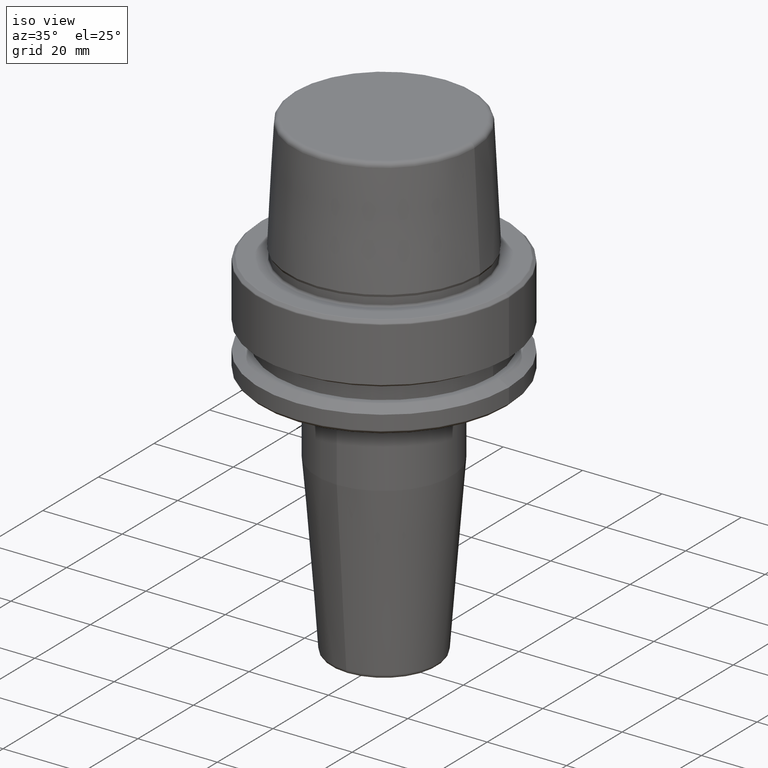
[diagram: clean part render]
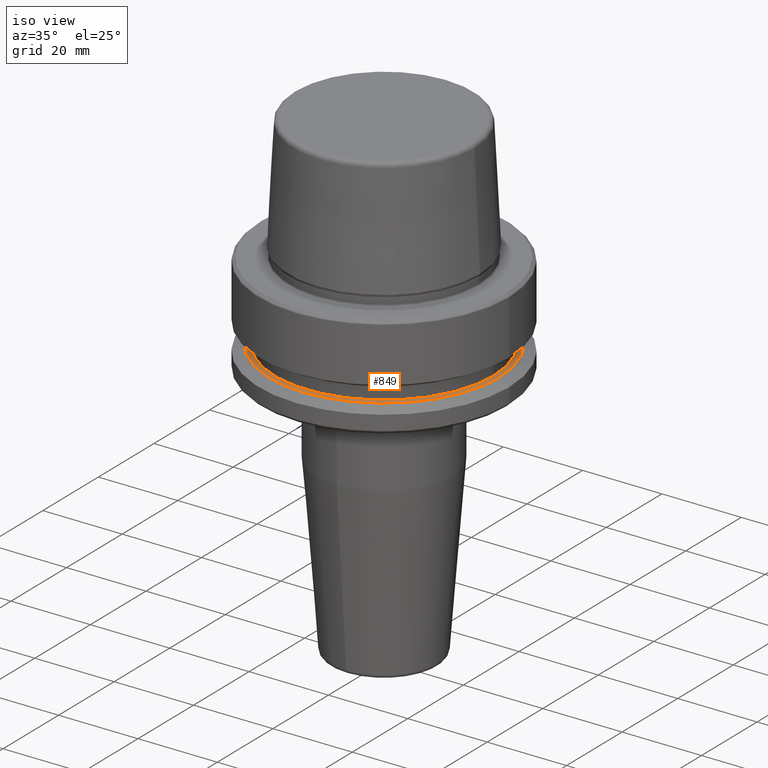
[diagram: same view with one face highlighted and labeled with its STEP entity id]
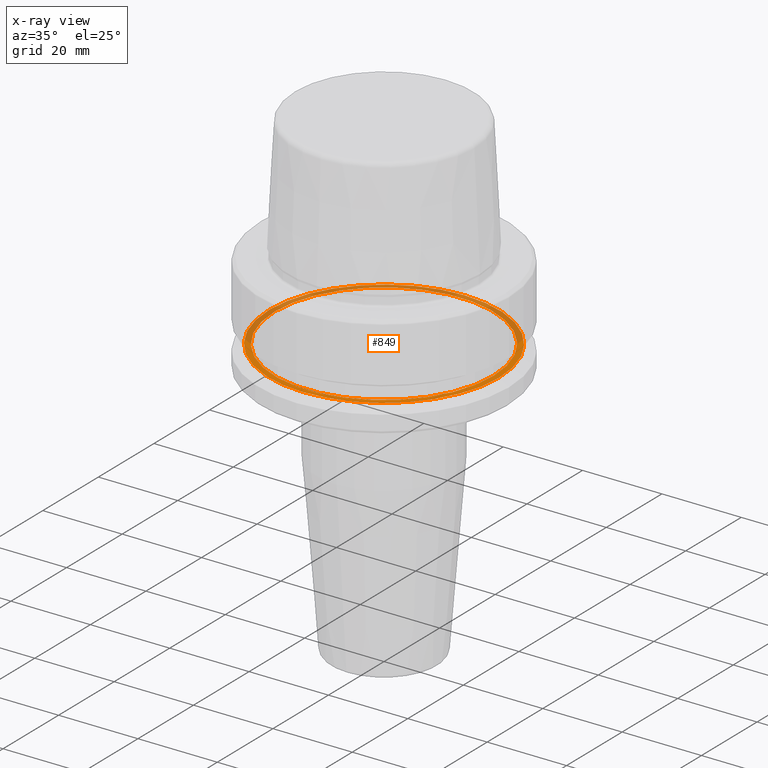
[diagram: x-ray of the same camera — body ghosted, the highlighted face saturated]
A machine part, iso view. The second image highlights one B-rep face of the part: STEP entity #849.
The next image is the same camera in x-ray: the body ghosted, the highlighted face saturated — about 49% of this face is hidden behind the body in this view.
In plain terms, the highlighted planar face has unit normal (0, 0, -1).
Its self-contained STEP definition (entity closure, byte-faithful):
#23 = PLANE ( 'NONE',  #687 ) ;
#47 = FACE_BOUND ( 'NONE', #366, .T. ) ;
#94 = DIRECTION ( 'NONE',  ( -0.0000000000000000000, -0.0000000000000000000, 1.000000000000000000 ) ) ;
#134 = ORIENTED_EDGE ( 'NONE', *, *, #428, .F. ) ;
#145 = DIRECTION ( 'NONE',  ( -0.0000000000000000000, -0.0000000000000000000, 1.000000000000000000 ) ) ;
#158 = DIRECTION ( 'NONE',  ( -0.0000000000000000000, -0.0000000000000000000, 1.000000000000000000 ) ) ;
#202 = DIRECTION ( 'NONE',  ( -0.0000000000000000000, -0.0000000000000000000, 1.000000000000000000 ) ) ;
#210 = VERTEX_POINT ( 'NONE', #375 ) ;
#239 = CIRCLE ( 'NONE', #1076, 28.94089653438085100 ) ;
#246 = EDGE_CURVE ( 'NONE', #1195, #416, #789, .T. ) ;
#308 = EDGE_CURVE ( 'NONE', #977, #210, #1005, .T. ) ;
#366 = EDGE_LOOP ( 'NONE', ( #134, #909 ) ) ;
#375 = CARTESIAN_POINT ( 'NONE',  ( -28.94089653438085100, 0.0000000000000000000, -19.90000000000001600 ) ) ;
#413 = EDGE_LOOP ( 'NONE', ( #956, #1249 ) ) ;
#416 = VERTEX_POINT ( 'NONE', #501 ) ;
#428 = EDGE_CURVE ( 'NONE', #416, #1195, #1077, .T. ) ;
#444 = CARTESIAN_POINT ( 'NONE',  ( 0.0000000000000000000, 0.0000000000000000000, -19.90000000000001600 ) ) ;
#448 = CARTESIAN_POINT ( 'NONE',  ( -27.49999999999999600, 3.367778697655220900E-015, -19.90000000000001600 ) ) ;
#450 = DIRECTION ( 'NONE',  ( 0.0000000000000000000, 0.0000000000000000000, -1.000000000000000000 ) ) ;
#501 = CARTESIAN_POINT ( 'NONE',  ( 27.49999999999999600, 0.0000000000000000000, -19.90000000000001600 ) ) ;
#682 = DIRECTION ( 'NONE',  ( 1.000000000000000000, 0.0000000000000000000, 0.0000000000000000000 ) ) ;
#687 = AXIS2_PLACEMENT_3D ( 'NONE', #806, #450, #1231 ) ;
#732 = AXIS2_PLACEMENT_3D ( 'NONE', #1134, #145, #1080 ) ;
#783 = CARTESIAN_POINT ( 'NONE',  ( 0.0000000000000000000, 0.0000000000000000000, -19.90000000000001600 ) ) ;
#789 = CIRCLE ( 'NONE', #1082, 27.49999999999999600 ) ;
#793 = DIRECTION ( 'NONE',  ( 1.000000000000000000, 0.0000000000000000000, 0.0000000000000000000 ) ) ;
#803 = FACE_OUTER_BOUND ( 'NONE', #413, .T. ) ;
#806 = CARTESIAN_POINT ( 'NONE',  ( 0.0000000000000000000, 27.49999999999999600, -19.90000000000000900 ) ) ;
#849 = ADVANCED_FACE ( 'NONE', ( #47, #803 ), #23, .F. ) ;
#870 = CARTESIAN_POINT ( 'NONE',  ( 28.94089653438085100, 3.700937523921292900E-015, -19.90000000000001600 ) ) ;
#892 = CARTESIAN_POINT ( 'NONE',  ( 0.0000000000000000000, 0.0000000000000000000, -19.90000000000001600 ) ) ;
#901 = EDGE_CURVE ( 'NONE', #210, #977, #239, .T. ) ;
#909 = ORIENTED_EDGE ( 'NONE', *, *, #246, .F. ) ;
#931 = AXIS2_PLACEMENT_3D ( 'NONE', #783, #94, #682 ) ;
#956 = ORIENTED_EDGE ( 'NONE', *, *, #901, .T. ) ;
#977 = VERTEX_POINT ( 'NONE', #870 ) ;
#1005 = CIRCLE ( 'NONE', #931, 28.94089653438085100 ) ;
#1076 = AXIS2_PLACEMENT_3D ( 'NONE', #444, #158, #1124 ) ;
#1077 = CIRCLE ( 'NONE', #732, 27.49999999999999600 ) ;
#1080 = DIRECTION ( 'NONE',  ( 1.000000000000000000, 0.0000000000000000000, 0.0000000000000000000 ) ) ;
#1082 = AXIS2_PLACEMENT_3D ( 'NONE', #892, #202, #793 ) ;
#1124 = DIRECTION ( 'NONE',  ( 1.000000000000000000, 0.0000000000000000000, 0.0000000000000000000 ) ) ;
#1134 = CARTESIAN_POINT ( 'NONE',  ( 0.0000000000000000000, 0.0000000000000000000, -19.90000000000001600 ) ) ;
#1195 = VERTEX_POINT ( 'NONE', #448 ) ;
#1231 = DIRECTION ( 'NONE',  ( -1.000000000000000000, 0.0000000000000000000, -0.0000000000000000000 ) ) ;
#1249 = ORIENTED_EDGE ( 'NONE', *, *, #308, .T. ) ;